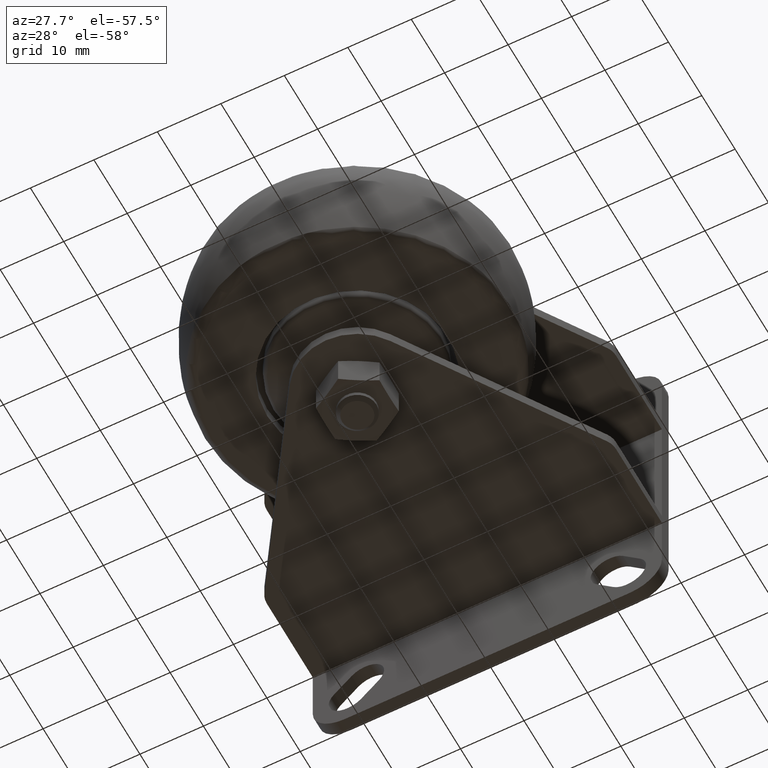
[diagram: clean part render]
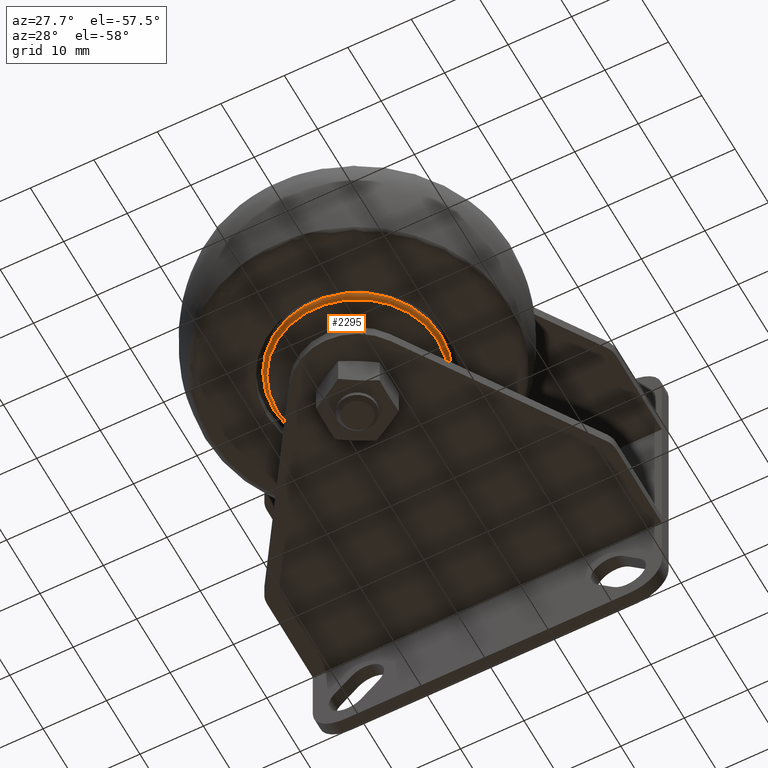
[diagram: same view with one face highlighted and labeled with its STEP entity id]
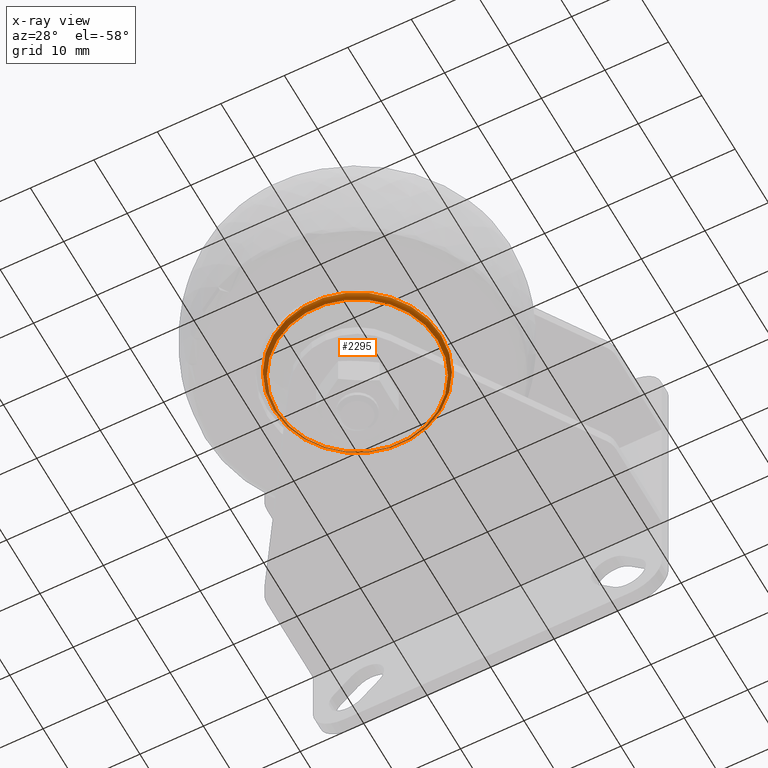
[diagram: x-ray of the same camera — body ghosted, the highlighted face saturated]
A machine part, auxiliary view. The second image highlights one B-rep face of the part: STEP entity #2295.
The next image is the same camera in x-ray: the body ghosted, the highlighted face saturated — about 0% of this face is hidden behind the body in this view.
In plain terms, the highlighted toroidal blend (fillet) surface has major radius 12.2 mm and minor (blend) radius 1 mm.
Its self-contained STEP definition (entity closure, byte-faithful):
#183=TOROIDAL_SURFACE('',#2756,12.2,1.);
#387=FACE_OUTER_BOUND('',#559,.T.);
#559=EDGE_LOOP('',(#2024,#2025,#2026,#2027));
#962=CIRCLE('',#2755,13.2);
#963=CIRCLE('',#2757,1.);
#964=CIRCLE('',#2758,12.6226182617);
#1152=VERTEX_POINT('',#4168);
#1153=VERTEX_POINT('',#4172);
#1445=EDGE_CURVE('',#1152,#1152,#962,.T.);
#1447=EDGE_CURVE('',#1152,#1153,#963,.T.);
#1448=EDGE_CURVE('',#1153,#1153,#964,.T.);
#2024=ORIENTED_EDGE('',*,*,#1445,.F.);
#2025=ORIENTED_EDGE('',*,*,#1447,.T.);
#2026=ORIENTED_EDGE('',*,*,#1448,.T.);
#2027=ORIENTED_EDGE('',*,*,#1447,.F.);
#2295=ADVANCED_FACE('',(#387),#183,.T.);
#2755=AXIS2_PLACEMENT_3D('',#4169,#3411,#3412);
#2756=AXIS2_PLACEMENT_3D('',#4171,#3414,#3415);
#2757=AXIS2_PLACEMENT_3D('',#4173,#3416,#3417);
#2758=AXIS2_PLACEMENT_3D('',#4174,#3418,#3419);
#3411=DIRECTION('center_axis',(1.,0.,0.));
#3412=DIRECTION('ref_axis',(0.,0.,-1.));
#3414=DIRECTION('center_axis',(1.,0.,0.));
#3415=DIRECTION('ref_axis',(0.,0.,-1.));
#3416=DIRECTION('center_axis',(0.,-1.,-1.22464679914735E-16));
#3417=DIRECTION('ref_axis',(0.,-1.22464679914735E-16,1.));
#3418=DIRECTION('center_axis',(1.,0.,0.));
#3419=DIRECTION('ref_axis',(0.,0.,-1.));
#4168=CARTESIAN_POINT('',(2.93130393893009,1.61653377487451E-15,13.2));
#4169=CARTESIAN_POINT('Origin',(2.93130393893009,0.,0.));
#4171=CARTESIAN_POINT('Origin',(2.93130393893009,0.,0.));
#4172=CARTESIAN_POINT('',(2.02499615189343,-1.54582490510498E-15,12.6226182617));
#4173=CARTESIAN_POINT('Origin',(2.93130393893009,-1.49406909495977E-15,
12.2));
#4174=CARTESIAN_POINT('Origin',(2.02499615189343,0.,0.));